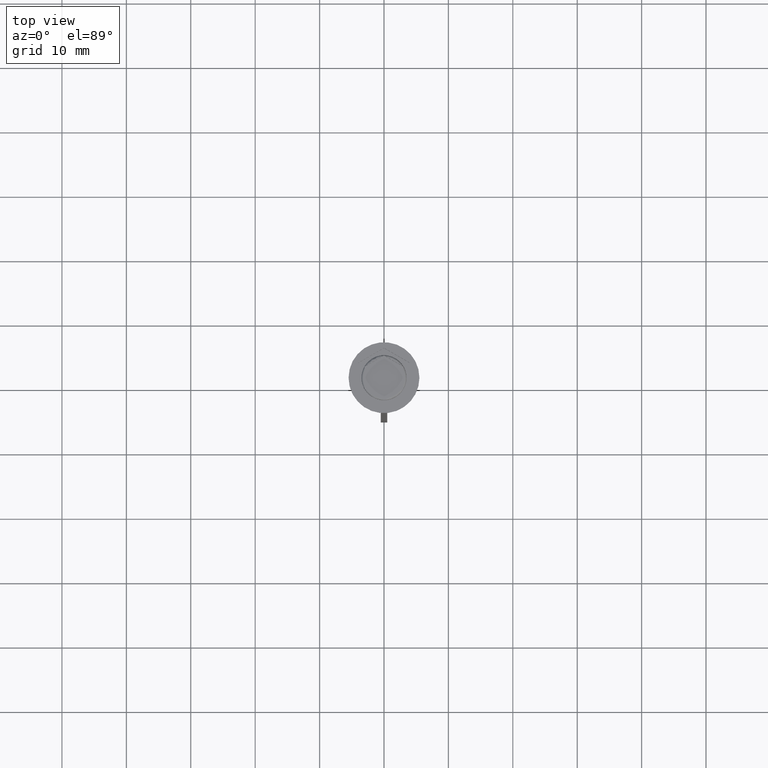
[diagram: clean part render]
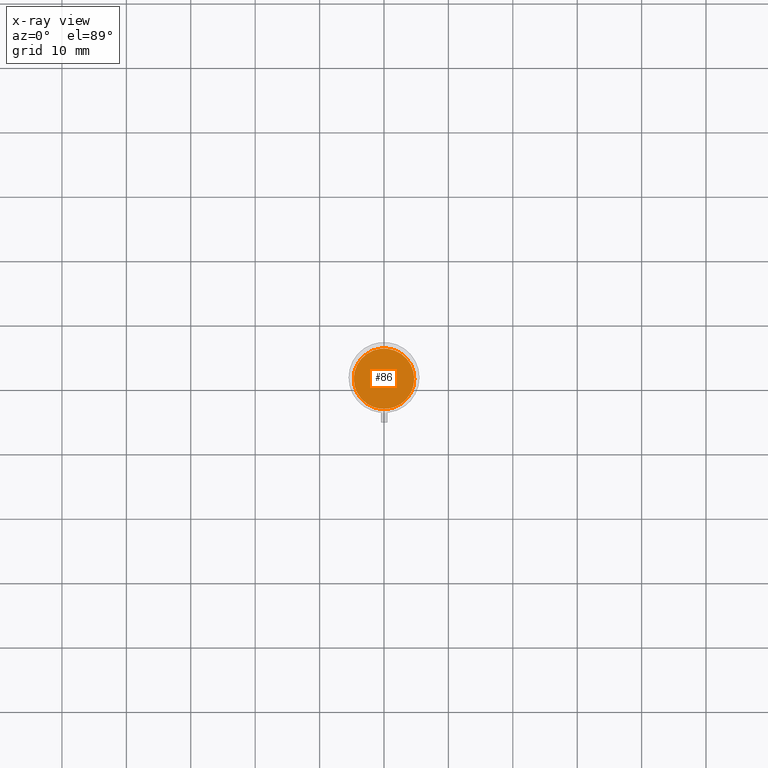
[diagram: x-ray — body ghosted, one internal face saturated and labeled with its STEP entity id]
A machine part, top view, then the same camera in x-ray: the body is ghosted and one INTERNAL B-rep face — a face not visible from any outside direction — is saturated and labeled: STEP entity #86.
In plain terms, the highlighted planar face has unit normal (0, 0, -1).
Its self-contained STEP definition (entity closure, byte-faithful):
#86 = ADVANCED_FACE ( 'NONE', ( #1575 ), #971, .F. ) ;
#179 = CIRCLE ( 'NONE', #390, 4.700000000000001066 ) ;
#224 = CARTESIAN_POINT ( 'NONE',  ( 0.000000000000000000, 0.000000000000000000, -10.50000000000000178 ) ) ;
#245 = EDGE_CURVE ( 'NONE', #1301, #696, #1682, .T. ) ;
#390 = AXIS2_PLACEMENT_3D ( 'NONE', #2368, #1350, #1376 ) ;
#423 = DIRECTION ( 'NONE',  ( -0.000000000000000000, -0.000000000000000000, 1.000000000000000000 ) ) ;
#440 = EDGE_CURVE ( 'NONE', #696, #1301, #179, .T. ) ;
#511 = AXIS2_PLACEMENT_3D ( 'NONE', #224, #423, #2196 ) ;
#598 = ORIENTED_EDGE ( 'NONE', *, *, #440, .T. ) ;
#696 = VERTEX_POINT ( 'NONE', #1610 ) ;
#775 = EDGE_LOOP ( 'NONE', ( #1847, #598 ) ) ;
#971 = PLANE ( 'NONE',  #1511 ) ;
#1301 = VERTEX_POINT ( 'NONE', #2019 ) ;
#1350 = DIRECTION ( 'NONE',  ( -0.000000000000000000, -0.000000000000000000, 1.000000000000000000 ) ) ;
#1376 = DIRECTION ( 'NONE',  ( -1.000000000000000000, 0.000000000000000000, 0.000000000000000000 ) ) ;
#1511 = AXIS2_PLACEMENT_3D ( 'NONE', #2342, #2132, #2546 ) ;
#1575 = FACE_OUTER_BOUND ( 'NONE', #775, .T. ) ;
#1610 = CARTESIAN_POINT ( 'NONE',  ( 4.700000000000001066, 5.939536975864663955E-16, -10.50000000000000178 ) ) ;
#1682 = CIRCLE ( 'NONE', #511, 4.700000000000001066 ) ;
#1847 = ORIENTED_EDGE ( 'NONE', *, *, #245, .T. ) ;
#2019 = CARTESIAN_POINT ( 'NONE',  ( -4.700000000000001066, 0.000000000000000000, -10.50000000000000178 ) ) ;
#2132 = DIRECTION ( 'NONE',  ( 0.000000000000000000, 0.000000000000000000, -1.000000000000000000 ) ) ;
#2196 = DIRECTION ( 'NONE',  ( -1.000000000000000000, 0.000000000000000000, 0.000000000000000000 ) ) ;
#2342 = CARTESIAN_POINT ( 'NONE',  ( 0.000000000000000000, 0.000000000000000000, -10.50000000000000178 ) ) ;
#2368 = CARTESIAN_POINT ( 'NONE',  ( 0.000000000000000000, 0.000000000000000000, -10.50000000000000178 ) ) ;
#2546 = DIRECTION ( 'NONE',  ( -1.000000000000000000, 0.000000000000000000, -0.000000000000000000 ) ) ;